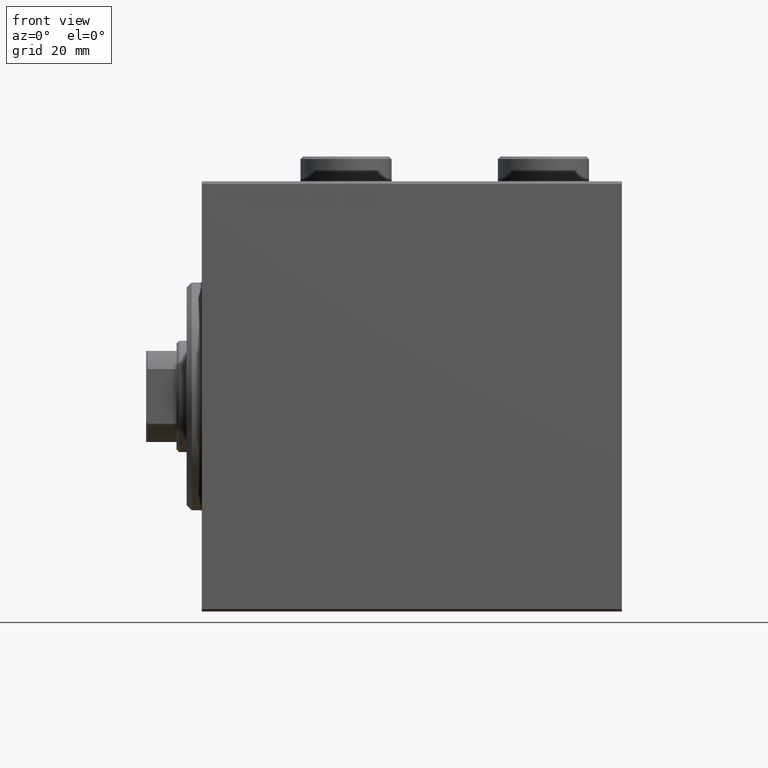
[diagram: clean part render]
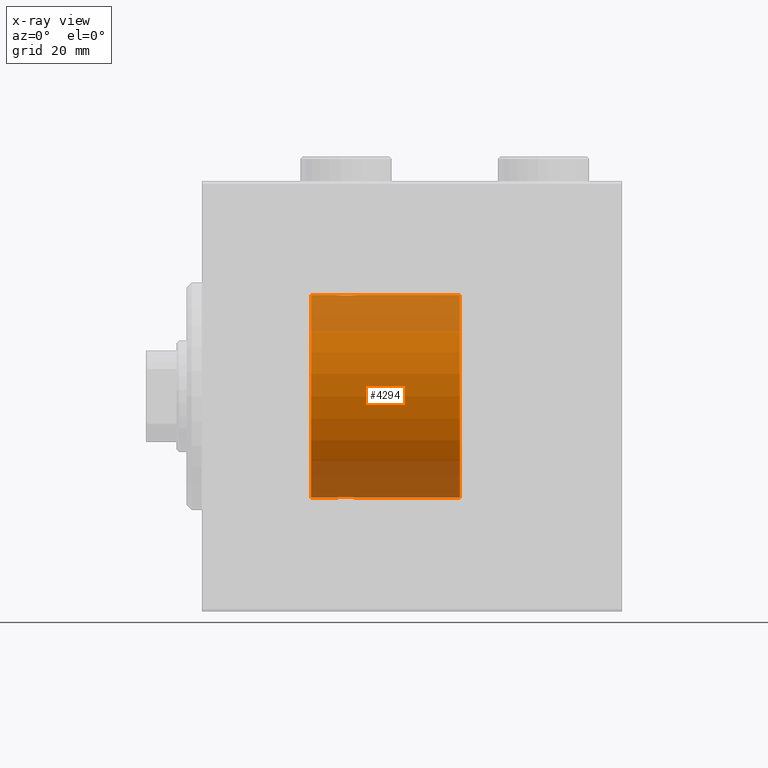
[diagram: x-ray — body ghosted, one internal face saturated and labeled with its STEP entity id]
A machine part, front view, then the same camera in x-ray: the body is ghosted and one INTERNAL B-rep face — a face not visible from any outside direction — is saturated and labeled: STEP entity #4294.
In plain terms, the highlighted cylindrical surface (partial cylindrical patch) has radius 20 mm, axis along (-1, -0, -0).
Its self-contained STEP definition (entity closure, byte-faithful):
#785 = B_SPLINE_CURVE_WITH_KNOTS ( 'NONE', 3,
 ( #41062, #2495, #19695, #16701, #13275, #2270, #27287, #12818, #41292, #23599, #37395, #16472, #30054, #26832, #6168, #44500, #13040, #5710, #9834, #37850, #2043, #20148, #6389, #27057, #16943, #30732 ),
 .UNSPECIFIED., .F., .F.,
 ( 4, 2, 2, 2, 2, 2, 2, 2, 2, 2, 2, 2, 4 ),
 ( 0.006256819553329842284, 0.007038738568778818427, 0.007820657584227792836, 0.008211617091952278305, 0.008602576599676762040, 0.008993536107401245774, 0.009384495615125729509, 0.009775455122850213244, 0.01016641463057469871, 0.01055737413829918071, 0.01094833364602366618, 0.01173025266147263365, 0.01251217167692159939 ),
 .UNSPECIFIED. ) ;
#1550 = CARTESIAN_POINT ( 'NONE',  ( 26.50000000000000355, -1.552636033655995435E-23, 20.00000000000000000 ) ) ;
#1735 = ORIENTED_EDGE ( 'NONE', *, *, #35704, .F. ) ;
#1771 = CARTESIAN_POINT ( 'NONE',  ( 30.09774691554729742, -1.230936344679278260, 19.96293863536309132 ) ) ;
#2043 = CARTESIAN_POINT ( 'NONE',  ( 27.17903093152710525, -1.507328959728492457, -19.94333197382385592 ) ) ;
#2270 = CARTESIAN_POINT ( 'NONE',  ( 29.82306668919470383, -1.505486175075772870, -19.94347168299867334 ) ) ;
#2495 = CARTESIAN_POINT ( 'NONE',  ( 30.49999999999999645, -0.2610801504281900498, -19.99999999999999645 ) ) ;
#2850 = EDGE_CURVE ( 'NONE', #5524, #18769, #30577, .T. ) ;
#2927 = DIRECTION ( 'NONE',  ( 0.000000000000000000, 0.000000000000000000, 1.000000000000000000 ) ) ;
#2938 = CARTESIAN_POINT ( 'NONE',  ( 30.50000000000000000, 2.449293582768784389E-15, -20.00000000000000000 ) ) ;
#3130 = CARTESIAN_POINT ( 'NONE',  ( 30.50000000000000000, -1.018190274327657040E-15, 20.00000000000000000 ) ) ;
#4294 = ADVANCED_FACE ( 'NONE', ( #40256 ), #23031, .F. ) ;
#4628 = CARTESIAN_POINT ( 'NONE',  ( 51.00000000000000711, 2.449293598294706513E-15, -20.00000000000000000 ) ) ;
#5154 = DIRECTION ( 'NONE',  ( 0.000000000000000000, 0.000000000000000000, 1.000000000000000000 ) ) ;
#5212 = CARTESIAN_POINT ( 'NONE',  ( 29.50067219139243591, -1.736582545981374182, 19.92459705242980661 ) ) ;
#5363 = EDGE_LOOP ( 'NONE', ( #25036, #9337, #33254, #22115, #6825, #36432, #39183, #1735 ) ) ;
#5386 = EDGE_CURVE ( 'NONE', #15503, #25437, #7940, .T. ) ;
#5524 = VERTEX_POINT ( 'NONE', #4628 ) ;
#5653 = CARTESIAN_POINT ( 'NONE',  ( 27.98076487864722495, -1.935816449315124865, 19.90611141657401362 ) ) ;
#5710 = CARTESIAN_POINT ( 'NONE',  ( 27.61420923329272981, -1.797933656607917596, -19.91908554465558367 ) ) ;
#6168 = CARTESIAN_POINT ( 'NONE',  ( 28.23922743968432059, -1.987205673487808966, -19.90104673894211018 ) ) ;
#6389 = CARTESIAN_POINT ( 'NONE',  ( 26.75313023696928738, -1.008108445278687704, -19.97602680192586533 ) ) ;
#6399 = CARTESIAN_POINT ( 'NONE',  ( 30.50000000000000000, -1.018190274327657040E-15, 20.00000000000000000 ) ) ;
#6825 = ORIENTED_EDGE ( 'NONE', *, *, #5386, .T. ) ;
#7050 = CARTESIAN_POINT ( 'NONE',  ( 51.00000000000000711, 0.000000000000000000, 0.000000000000000000 ) ) ;
#7940 = CIRCLE ( 'NONE', #16692, 20.00000000000000000 ) ;
#8420 = CARTESIAN_POINT ( 'NONE',  ( 28.76077256031568297, -1.987205673487810298, 19.90104673894211018 ) ) ;
#8634 = CARTESIAN_POINT ( 'NONE',  ( 26.55244937117491588, -0.5243189001515020653, 19.99457699142850231 ) ) ;
#9101 = CARTESIAN_POINT ( 'NONE',  ( 26.50000000000000711, -0.2610801504281928254, 19.99999999999999645 ) ) ;
#9337 = ORIENTED_EDGE ( 'NONE', *, *, #29948, .T. ) ;
#9807 = DIRECTION ( 'NONE',  ( -1.000000000000000000, 0.000000000000000000, 0.000000000000000000 ) ) ;
#9834 = CARTESIAN_POINT ( 'NONE',  ( 27.49932780860757475, -1.736582545981376180, -19.92459705242981371 ) ) ;
#12030 = DIRECTION ( 'NONE',  ( -1.000000000000000000, -0.000000000000000000, -0.000000000000000000 ) ) ;
#12302 = VECTOR ( 'NONE', #12030, 1000.000000000000000 ) ;
#12818 = CARTESIAN_POINT ( 'NONE',  ( 29.50306556339602437, -1.735203193119894349, -19.92471783160910803 ) ) ;
#13040 = CARTESIAN_POINT ( 'NONE',  ( 27.85651471266959334, -1.898187925611338533, -19.90978194174746818 ) ) ;
#13275 = CARTESIAN_POINT ( 'NONE',  ( 30.09941524884030173, -1.228758402364235502, -19.96307487248084911 ) ) ;
#14667 = VECTOR ( 'NONE', #41518, 1000.000000000000000 ) ;
#15503 = VERTEX_POINT ( 'NONE', #33377 ) ;
#15748 = CARTESIAN_POINT ( 'NONE',  ( 30.24686976303072683, -1.008108445278685483, 19.97602680192586178 ) ) ;
#15966 = CARTESIAN_POINT ( 'NONE',  ( 29.71805419472152465, -1.591668229360196252, 19.93669678979813042 ) ) ;
#15967 = EDGE_CURVE ( 'NONE', #36506, #25437, #34677, .T. ) ;
#16052 = CARTESIAN_POINT ( 'NONE',  ( 26.50000000000000355, -3.809869420541414000E-15, -20.00000000000000000 ) ) ;
#16417 = CARTESIAN_POINT ( 'NONE',  ( 21.60000000000000142, 0.000000000000000000, 20.00000000000000000 ) ) ;
#16472 = CARTESIAN_POINT ( 'NONE',  ( 28.76358144091416236, -1.986835489085814199, -19.90108393514801222 ) ) ;
#16692 = AXIS2_PLACEMENT_3D ( 'NONE', #26689, #40690, #19336 ) ;
#16701 = CARTESIAN_POINT ( 'NONE',  ( 30.24825913460018612, -1.005710574260838985, -19.97614991974274190 ) ) ;
#16943 = CARTESIAN_POINT ( 'NONE',  ( 26.50000000000001066, -0.2644051013331030209, -20.00000000000000355 ) ) ;
#17338 = CARTESIAN_POINT ( 'NONE',  ( 30.50000000000000355, -0.2644051013330979139, 20.00000000000000355 ) ) ;
#18674 = B_SPLINE_CURVE_WITH_KNOTS ( 'NONE', 3,
 ( #1550, #9101, #8634, #29550, #19419, #29996, #22863, #36890, #26093, #39882, #5653, #44217, #33447, #29769, #8420, #36660, #18755, #32775, #5212, #15966, #33227, #1771, #15748, #20799, #17338, #3130 ),
 .UNSPECIFIED., .F., .F.,
 ( 4, 2, 2, 2, 2, 2, 2, 2, 2, 2, 2, 2, 4 ),
 ( 0.006256819553329831009, 0.007038738568778806284, 0.007820657584227780693, 0.008211617091952264427, 0.008602576599676746427, 0.008993536107401230162, 0.009384495615125713897, 0.009775455122850197631, 0.01016641463057468137, 0.01055737413829916510, 0.01094833364602364710, 0.01173025266147261457, 0.01251217167692158030 ),
 .UNSPECIFIED. ) ;
#18755 = CARTESIAN_POINT ( 'NONE',  ( 29.14348528733042798, -1.898187925611339866, 19.90978194174747173 ) ) ;
#18769 = VERTEX_POINT ( 'NONE', #30856 ) ;
#19139 = CARTESIAN_POINT ( 'NONE',  ( 51.00000000000000711, 2.449293598294706513E-15, -20.00000000000000000 ) ) ;
#19336 = DIRECTION ( 'NONE',  ( 0.000000000000000000, 0.000000000000000000, 1.000000000000000000 ) ) ;
#19419 = CARTESIAN_POINT ( 'NONE',  ( 26.90058475115969827, -1.228758402364236391, 19.96307487248084911 ) ) ;
#19695 = CARTESIAN_POINT ( 'NONE',  ( 30.44755062882508412, -0.5243189001514996228, -19.99457699142849876 ) ) ;
#20148 = CARTESIAN_POINT ( 'NONE',  ( 26.90225308445269903, -1.230936344679278260, -19.96293863536309132 ) ) ;
#20217 = CARTESIAN_POINT ( 'NONE',  ( 26.50000000000000355, -1.552636033655995435E-23, 20.00000000000000000 ) ) ;
#20799 = CARTESIAN_POINT ( 'NONE',  ( 30.44679484191799190, -0.5270924491156685487, 19.99450181871976540 ) ) ;
#21039 = VERTEX_POINT ( 'NONE', #6399 ) ;
#22115 = ORIENTED_EDGE ( 'NONE', *, *, #42155, .T. ) ;
#22863 = CARTESIAN_POINT ( 'NONE',  ( 27.27971054205536205, -1.589957321664211998, 19.93683391378736403 ) ) ;
#23031 = CYLINDRICAL_SURFACE ( 'NONE', #43100, 20.00000000000000000 ) ;
#23599 = CARTESIAN_POINT ( 'NONE',  ( 29.14630673924643744, -1.897222639860594029, -19.90987429971496780 ) ) ;
#23831 = CARTESIAN_POINT ( 'NONE',  ( 51.00000000000000711, 0.000000000000000000, 20.00000000000000000 ) ) ;
#25036 = ORIENTED_EDGE ( 'NONE', *, *, #2850, .F. ) ;
#25168 = VERTEX_POINT ( 'NONE', #2938 ) ;
#25437 = VERTEX_POINT ( 'NONE', #16417 ) ;
#26093 = CARTESIAN_POINT ( 'NONE',  ( 27.61170562792909422, -1.796691196322319328, 19.91919800395357143 ) ) ;
#26166 = EDGE_CURVE ( 'NONE', #36506, #21039, #18674, .T. ) ;
#26689 = CARTESIAN_POINT ( 'NONE',  ( 21.60000000000000142, 0.000000000000000000, 0.000000000000000000 ) ) ;
#26832 = CARTESIAN_POINT ( 'NONE',  ( 28.36941128289166159, -2.000100592782553921, -19.89973863218036598 ) ) ;
#27057 = CARTESIAN_POINT ( 'NONE',  ( 26.55320515808203297, -0.5270924491156698810, -19.99450181871976184 ) ) ;
#27287 = CARTESIAN_POINT ( 'NONE',  ( 29.72028945794465571, -1.589957321664208223, -19.93683391378736047 ) ) ;
#29398 = VECTOR ( 'NONE', #30770, 1000.000000000000000 ) ;
#29550 = CARTESIAN_POINT ( 'NONE',  ( 26.75174086539980678, -1.005710574260840984, 19.97614991974274190 ) ) ;
#29769 = CARTESIAN_POINT ( 'NONE',  ( 28.63058871710833841, -2.000100592782553477, 19.89973863218035532 ) ) ;
#29935 = LINE ( 'NONE', #19139, #12302 ) ;
#29948 = EDGE_CURVE ( 'NONE', #5524, #25168, #29935, .T. ) ;
#29996 = CARTESIAN_POINT ( 'NONE',  ( 27.17693331080530683, -1.505486175075774424, 19.94347168299868400 ) ) ;
#30054 = CARTESIAN_POINT ( 'NONE',  ( 28.63365196142448355, -1.999898234284062992, -19.89975896996866211 ) ) ;
#30577 = CIRCLE ( 'NONE', #43772, 20.00000000000000000 ) ;
#30732 = CARTESIAN_POINT ( 'NONE',  ( 26.50000000000000355, -3.809869420541414000E-15, -20.00000000000000000 ) ) ;
#30770 = DIRECTION ( 'NONE',  ( -1.000000000000000000, -0.000000000000000000, -0.000000000000000000 ) ) ;
#30856 = CARTESIAN_POINT ( 'NONE',  ( 51.00000000000000711, 0.000000000000000000, 20.00000000000000000 ) ) ;
#31201 = LINE ( 'NONE', #23831, #14667 ) ;
#31650 = EDGE_CURVE ( 'NONE', #25168, #32925, #785, .T. ) ;
#32720 = DIRECTION ( 'NONE',  ( -1.000000000000000000, -0.000000000000000000, -0.000000000000000000 ) ) ;
#32775 = CARTESIAN_POINT ( 'NONE',  ( 29.38579076670728085, -1.797933656607917374, 19.91908554465557657 ) ) ;
#32925 = VERTEX_POINT ( 'NONE', #16052 ) ;
#32940 = CARTESIAN_POINT ( 'NONE',  ( 51.00000000000000711, 0.000000000000000000, 0.000000000000000000 ) ) ;
#33227 = CARTESIAN_POINT ( 'NONE',  ( 29.82096906847289830, -1.507328959728493567, 19.94333197382385947 ) ) ;
#33254 = ORIENTED_EDGE ( 'NONE', *, *, #31650, .T. ) ;
#33377 = CARTESIAN_POINT ( 'NONE',  ( 21.60000000000000142, 2.449293598294706513E-15, -20.00000000000000000 ) ) ;
#33447 = CARTESIAN_POINT ( 'NONE',  ( 28.36634803857552001, -1.999898234284064324, 19.89975896996866211 ) ) ;
#33994 = CARTESIAN_POINT ( 'NONE',  ( 51.00000000000000711, 0.000000000000000000, 20.00000000000000000 ) ) ;
#34677 = LINE ( 'NONE', #33994, #29398 ) ;
#35128 = CARTESIAN_POINT ( 'NONE',  ( 51.00000000000000711, 2.449293598294706513E-15, -20.00000000000000000 ) ) ;
#35704 = EDGE_CURVE ( 'NONE', #18769, #21039, #31201, .T. ) ;
#36432 = ORIENTED_EDGE ( 'NONE', *, *, #15967, .F. ) ;
#36506 = VERTEX_POINT ( 'NONE', #20217 ) ;
#36660 = CARTESIAN_POINT ( 'NONE',  ( 29.01648532918905943, -1.936551476643007197, 19.90603968831098669 ) ) ;
#36834 = VECTOR ( 'NONE', #44544, 1000.000000000000000 ) ;
#36890 = CARTESIAN_POINT ( 'NONE',  ( 27.49693443660398628, -1.735203193119898124, 19.92471783160911514 ) ) ;
#37395 = CARTESIAN_POINT ( 'NONE',  ( 29.01923512135276795, -1.935816449315124643, -19.90611141657401717 ) ) ;
#37850 = CARTESIAN_POINT ( 'NONE',  ( 27.28194580527848601, -1.591668229360197140, -19.93669678979812332 ) ) ;
#37896 = LINE ( 'NONE', #35128, #36834 ) ;
#39183 = ORIENTED_EDGE ( 'NONE', *, *, #26166, .T. ) ;
#39882 = CARTESIAN_POINT ( 'NONE',  ( 27.85369326075354834, -1.897222639860596693, 19.90987429971497136 ) ) ;
#40256 = FACE_OUTER_BOUND ( 'NONE', #5363, .T. ) ;
#40690 = DIRECTION ( 'NONE',  ( -1.000000000000000000, 0.000000000000000000, 0.000000000000000000 ) ) ;
#41062 = CARTESIAN_POINT ( 'NONE',  ( 30.50000000000000000, 2.449293582768784389E-15, -20.00000000000000000 ) ) ;
#41292 = CARTESIAN_POINT ( 'NONE',  ( 29.38829437207091999, -1.796691196322316664, -19.91919800395357143 ) ) ;
#41518 = DIRECTION ( 'NONE',  ( -1.000000000000000000, -0.000000000000000000, -0.000000000000000000 ) ) ;
#42155 = EDGE_CURVE ( 'NONE', #32925, #15503, #37896, .T. ) ;
#43100 = AXIS2_PLACEMENT_3D ( 'NONE', #32940, #32720, #5154 ) ;
#43772 = AXIS2_PLACEMENT_3D ( 'NONE', #7050, #9807, #2927 ) ;
#44217 = CARTESIAN_POINT ( 'NONE',  ( 28.23641855908585541, -1.986835489085815087, 19.90108393514801222 ) ) ;
#44500 = CARTESIAN_POINT ( 'NONE',  ( 27.98351467081095123, -1.936551476643005198, -19.90603968831098314 ) ) ;
#44544 = DIRECTION ( 'NONE',  ( -1.000000000000000000, -0.000000000000000000, -0.000000000000000000 ) ) ;